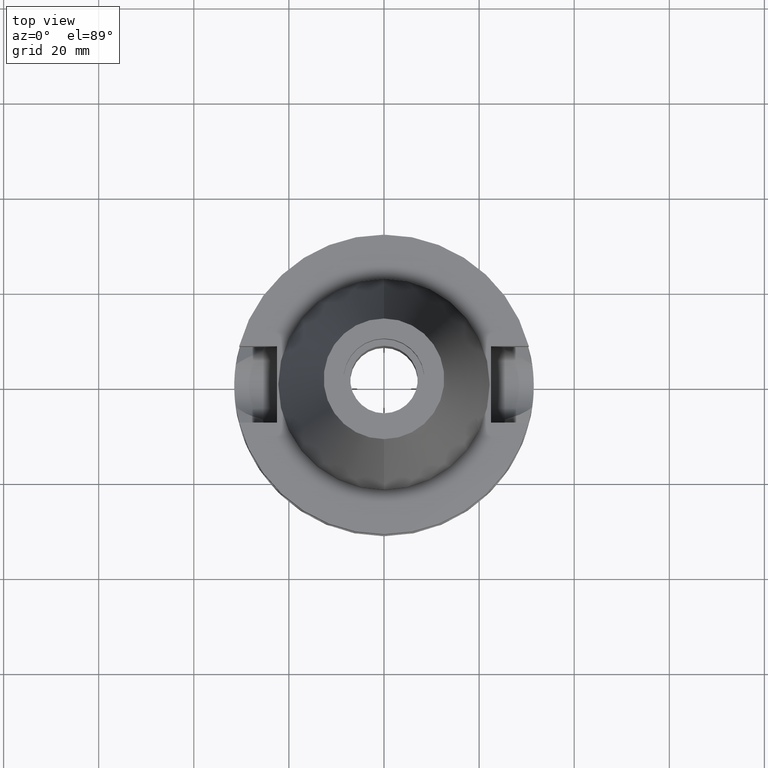
[diagram: clean part render]
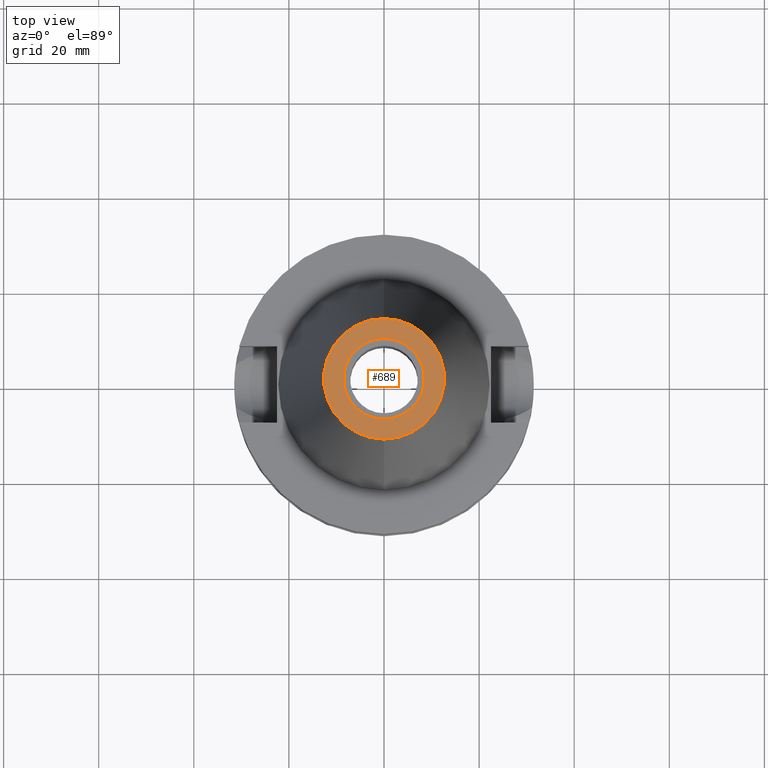
[diagram: same view with one face highlighted and labeled with its STEP entity id]
A machine part, top view. The second image highlights one B-rep face of the part: STEP entity #689.
In plain terms, the highlighted planar face has unit normal (0, 0, -1).
Its self-contained STEP definition (entity closure, byte-faithful):
#60 = CIRCLE ( 'NONE', #1743, 12.68766899429999917 ) ;
#98 = VERTEX_POINT ( 'NONE', #1280 ) ;
#232 = EDGE_LOOP ( 'NONE', ( #1988, #1262 ) ) ;
#327 = DIRECTION ( 'NONE',  ( 0.0000000000000000000, 0.0000000000000000000, -1.000000000000000000 ) ) ;
#374 = ORIENTED_EDGE ( 'NONE', *, *, #640, .F. ) ;
#413 = CARTESIAN_POINT ( 'NONE',  ( 0.0000000000000000000, 2.025565805790000122E-14, 65.40000000000000568 ) ) ;
#614 = CARTESIAN_POINT ( 'NONE',  ( 0.0000000000000000000, 1.625106302469000024E-14, 65.40000000000000568 ) ) ;
#640 = EDGE_CURVE ( 'NONE', #98, #1111, #995, .T. ) ;
#657 = AXIS2_PLACEMENT_3D ( 'NONE', #780, #1857, #1332 ) ;
#672 = EDGE_CURVE ( 'NONE', #1538, #1579, #60, .T. ) ;
#686 = PLANE ( 'NONE',  #2128 ) ;
#689 = ADVANCED_FACE ( 'NONE', ( #1440, #935 ), #686, .F. ) ;
#699 = DIRECTION ( 'NONE',  ( 0.0000000000000000000, -1.000000000000000000, 0.0000000000000000000 ) ) ;
#780 = CARTESIAN_POINT ( 'NONE',  ( 0.0000000000000000000, 2.097452572899999775E-14, 65.40000000000000568 ) ) ;
#904 = CARTESIAN_POINT ( 'NONE',  ( 0.0000000000000000000, 2.097452572899999775E-14, 65.40000000000000568 ) ) ;
#935 = FACE_BOUND ( 'NONE', #1434, .T. ) ;
#995 = CIRCLE ( 'NONE', #3393, 8.500000000000000000 ) ;
#1111 = VERTEX_POINT ( 'NONE', #2320 ) ;
#1191 = CARTESIAN_POINT ( 'NONE',  ( 0.0000000000000000000, -12.68766899429999917, 65.40000000000000568 ) ) ;
#1201 = DIRECTION ( 'NONE',  ( 0.0000000000000000000, 0.0000000000000000000, -1.000000000000000000 ) ) ;
#1262 = ORIENTED_EDGE ( 'NONE', *, *, #672, .F. ) ;
#1280 = CARTESIAN_POINT ( 'NONE',  ( 0.0000000000000000000, 8.500000000000000000, 65.40000000000000568 ) ) ;
#1306 = CARTESIAN_POINT ( 'NONE',  ( 0.0000000000000000000, 12.68766899429999917, 65.40000000000000568 ) ) ;
#1332 = DIRECTION ( 'NONE',  ( 0.0000000000000000000, -1.000000000000000000, 0.0000000000000000000 ) ) ;
#1434 = EDGE_LOOP ( 'NONE', ( #374, #3192 ) ) ;
#1440 = FACE_OUTER_BOUND ( 'NONE', #232, .T. ) ;
#1538 = VERTEX_POINT ( 'NONE', #1191 ) ;
#1579 = VERTEX_POINT ( 'NONE', #1306 ) ;
#1743 = AXIS2_PLACEMENT_3D ( 'NONE', #2055, #1201, #3368 ) ;
#1857 = DIRECTION ( 'NONE',  ( 0.0000000000000000000, 0.0000000000000000000, 1.000000000000000000 ) ) ;
#1970 = AXIS2_PLACEMENT_3D ( 'NONE', #614, #327, #2831 ) ;
#1988 = ORIENTED_EDGE ( 'NONE', *, *, #2808, .F. ) ;
#2055 = CARTESIAN_POINT ( 'NONE',  ( 0.0000000000000000000, 1.625106302469000024E-14, 65.40000000000000568 ) ) ;
#2128 = AXIS2_PLACEMENT_3D ( 'NONE', #413, #3142, #699 ) ;
#2181 = CIRCLE ( 'NONE', #657, 8.500000000000000000 ) ;
#2287 = EDGE_CURVE ( 'NONE', #1111, #98, #2181, .T. ) ;
#2309 = CIRCLE ( 'NONE', #1970, 12.68766899429999917 ) ;
#2320 = CARTESIAN_POINT ( 'NONE',  ( 0.0000000000000000000, -8.500000000000000000, 65.40000000000000568 ) ) ;
#2541 = DIRECTION ( 'NONE',  ( 0.0000000000000000000, 0.0000000000000000000, 1.000000000000000000 ) ) ;
#2808 = EDGE_CURVE ( 'NONE', #1579, #1538, #2309, .T. ) ;
#2831 = DIRECTION ( 'NONE',  ( 0.0000000000000000000, 1.000000000000000000, 0.0000000000000000000 ) ) ;
#2838 = DIRECTION ( 'NONE',  ( 0.0000000000000000000, 1.000000000000000000, 0.0000000000000000000 ) ) ;
#3142 = DIRECTION ( 'NONE',  ( 0.0000000000000000000, 0.0000000000000000000, -1.000000000000000000 ) ) ;
#3192 = ORIENTED_EDGE ( 'NONE', *, *, #2287, .F. ) ;
#3368 = DIRECTION ( 'NONE',  ( 0.0000000000000000000, -1.000000000000000000, 0.0000000000000000000 ) ) ;
#3393 = AXIS2_PLACEMENT_3D ( 'NONE', #904, #2541, #2838 ) ;